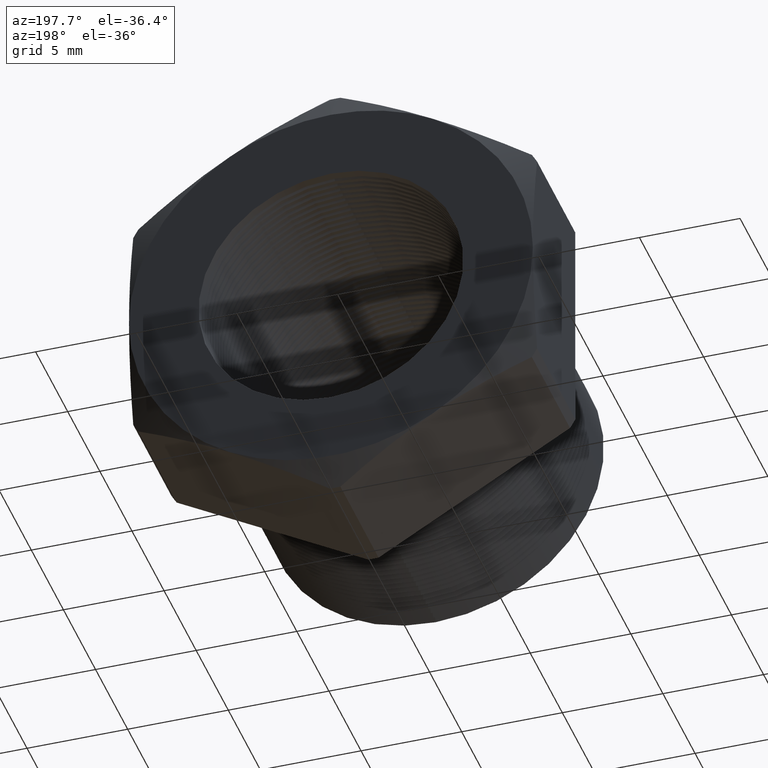
[diagram: clean part render]
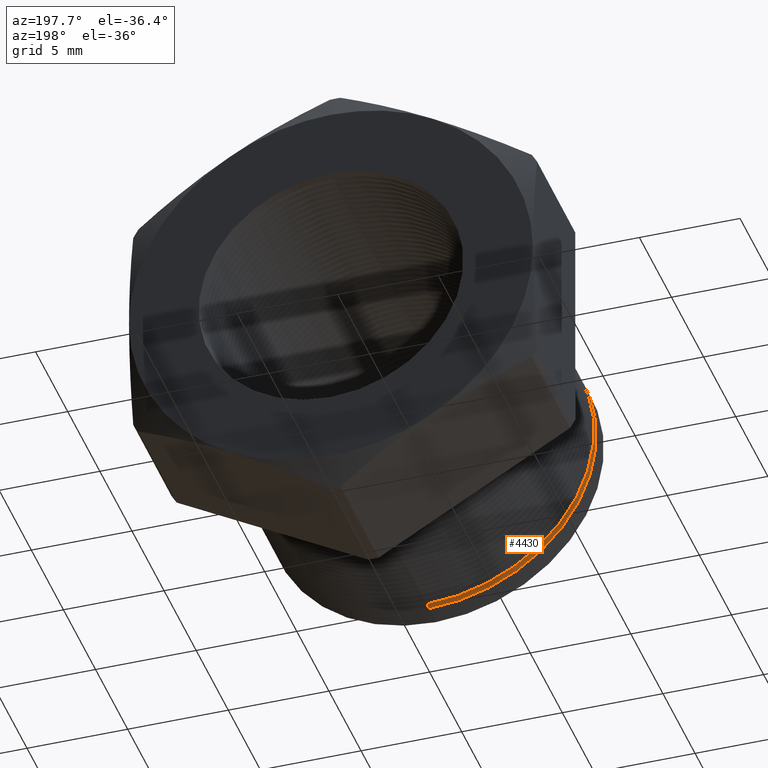
[diagram: same view with one face highlighted and labeled with its STEP entity id]
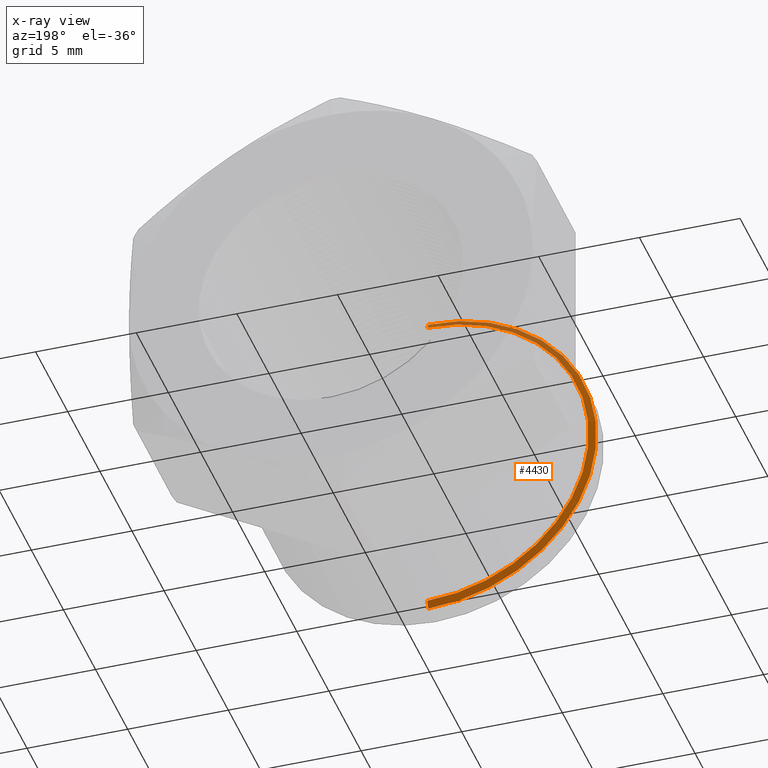
[diagram: x-ray of the same camera — body ghosted, the highlighted face saturated]
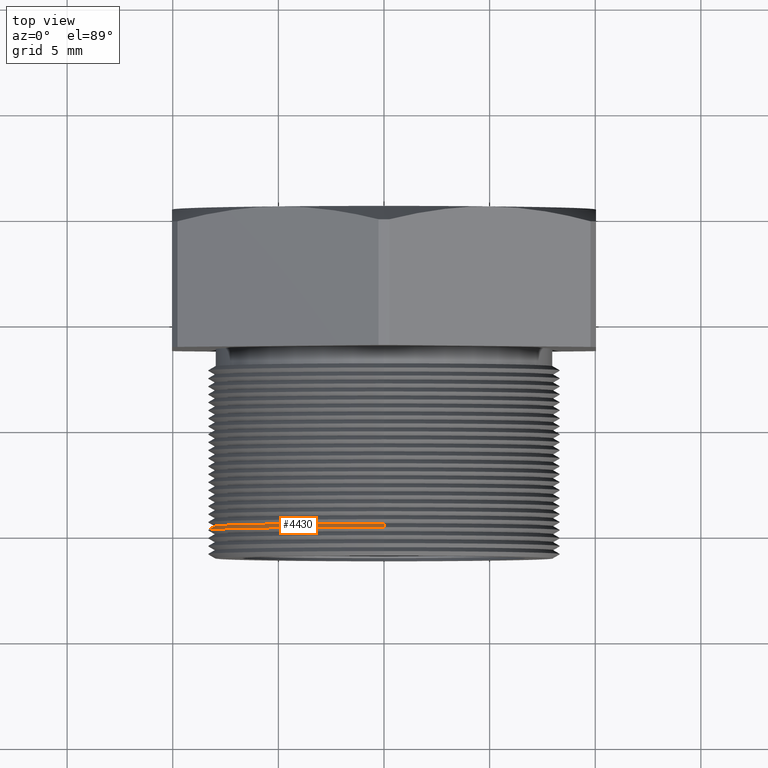
[diagram: same view with one face highlighted and labeled with its STEP entity id]
A machine part, auxiliary view. The second image highlights one B-rep face of the part: STEP entity #4430.
The next image is the same camera in x-ray: the body ghosted, the highlighted face saturated — about 22% of this face is hidden behind the body in this view.
A second angle (top view) of the same face is appended — the face is thin or edge-on in the first view.
In plain terms, the highlighted conical surface has half-angle 60 deg.
Its self-contained STEP definition (entity closure, byte-faithful):
#2578 = DIRECTION ( 'NONE',  ( 0.0000000000000000000, 0.0000000000000000000, 1.000000000000000000 ) ) ;
#2579 = DIRECTION ( 'NONE',  ( -0.0000000000000000000, 1.000000000000000000, -0.0000000000000000000 ) ) ;
#2580 = CARTESIAN_POINT ( 'NONE',  ( 0.0000000000000000000, -0.1900451094170520500, 0.0000000000000000000 ) ) ;
#2581 = AXIS2_PLACEMENT_3D ( 'NONE', #2580, #2579, #2578 ) ;
#2582 = CIRCLE ( 'NONE', #2581, 0.3287738815610546900 ) ;
#4420 = EDGE_LOOP ( 'NONE', ( #4427, #4421, #4425, #7813 ) ) ;
#4421 = ORIENTED_EDGE ( 'NONE', *, *, #4432, .T. ) ;
#4425 = ORIENTED_EDGE ( 'NONE', *, *, #4527, .T. ) ;
#4427 = ORIENTED_EDGE ( 'NONE', *, *, #4522, .F. ) ;
#4430 = ADVANCED_FACE ( 'NONE', ( #6438 ), #6437, .T. ) ;
#4432 = EDGE_CURVE ( 'NONE', #4521, #4523, #6496, .T. ) ;
#4507 = VERTEX_POINT ( 'NONE', #6602 ) ;
#4508 = VERTEX_POINT ( 'NONE', #6601 ) ;
#4521 = VERTEX_POINT ( 'NONE', #6632 ) ;
#4522 = EDGE_CURVE ( 'NONE', #4521, #4507, #6631, .T. ) ;
#4523 = VERTEX_POINT ( 'NONE', #6627 ) ;
#4527 = EDGE_CURVE ( 'NONE', #4523, #4508, #6676, .T. ) ;
#6433 = DIRECTION ( 'NONE',  ( 0.0000000000000000000, 0.0000000000000000000, -1.000000000000000000 ) ) ;
#6434 = DIRECTION ( 'NONE',  ( 0.0000000000000000000, -1.000000000000000000, 0.0000000000000000000 ) ) ;
#6435 = CARTESIAN_POINT ( 'NONE',  ( 0.0000000000000000000, -0.1820927551899911800, 0.0000000000000000000 ) ) ;
#6436 = AXIS2_PLACEMENT_3D ( 'NONE', #6435, #6434, #6433 ) ;
#6437 = CONICAL_SURFACE ( 'NONE', #6436, 0.3150000000000000600, 1.047197551196599600 ) ;
#6438 = FACE_OUTER_BOUND ( 'NONE', #4420, .T. ) ;
#6492 = DIRECTION ( 'NONE',  ( 0.0000000000000000000, 0.0000000000000000000, -1.000000000000000000 ) ) ;
#6493 = DIRECTION ( 'NONE',  ( 0.0000000000000000000, -1.000000000000000000, 0.0000000000000000000 ) ) ;
#6494 = CARTESIAN_POINT ( 'NONE',  ( 0.0000000000000000000, -0.1826051094170520700, 0.0000000000000000000 ) ) ;
#6495 = AXIS2_PLACEMENT_3D ( 'NONE', #6494, #6493, #6492 ) ;
#6496 = CIRCLE ( 'NONE', #6495, 0.3158874235527422400 ) ;
#6601 = CARTESIAN_POINT ( 'NONE',  ( 0.0000000000000000000, -0.1900451094170520500, -0.3287738815610546900 ) ) ;
#6602 = CARTESIAN_POINT ( 'NONE',  ( 4.026318816969966200E-017, -0.1900451094170520500, 0.3287738815610546900 ) ) ;
#6627 = CARTESIAN_POINT ( 'NONE',  ( 3.947412019208833400E-017, -0.1826051094170520700, -0.3158874235527422400 ) ) ;
#6628 = DIRECTION ( 'NONE',  ( 1.060575238724908000E-016, -0.4999999999999983900, 0.8660254037844394800 ) ) ;
#6629 = VECTOR ( 'NONE', #6628, 39.37007874015748100 ) ;
#6630 = CARTESIAN_POINT ( 'NONE',  ( 3.857637417314163300E-017, -0.1820927551899911800, 0.3150000000000000600 ) ) ;
#6631 = LINE ( 'NONE', #6630, #6629 ) ;
#6632 = CARTESIAN_POINT ( 'NONE',  ( 0.0000000000000000000, -0.1826051094170520700, 0.3158874235527422400 ) ) ;
#6673 = DIRECTION ( 'NONE',  ( 0.0000000000000000000, -0.4999999999999983900, -0.8660254037844394800 ) ) ;
#6674 = VECTOR ( 'NONE', #6673, 39.37007874015748100 ) ;
#6675 = CARTESIAN_POINT ( 'NONE',  ( 0.0000000000000000000, -0.1820927551899911800, -0.3150000000000000600 ) ) ;
#6676 = LINE ( 'NONE', #6675, #6674 ) ;
#7813 = ORIENTED_EDGE ( 'NONE', *, *, #7859, .T. ) ;
#7859 = EDGE_CURVE ( 'NONE', #4508, #4507, #2582, .T. ) ;